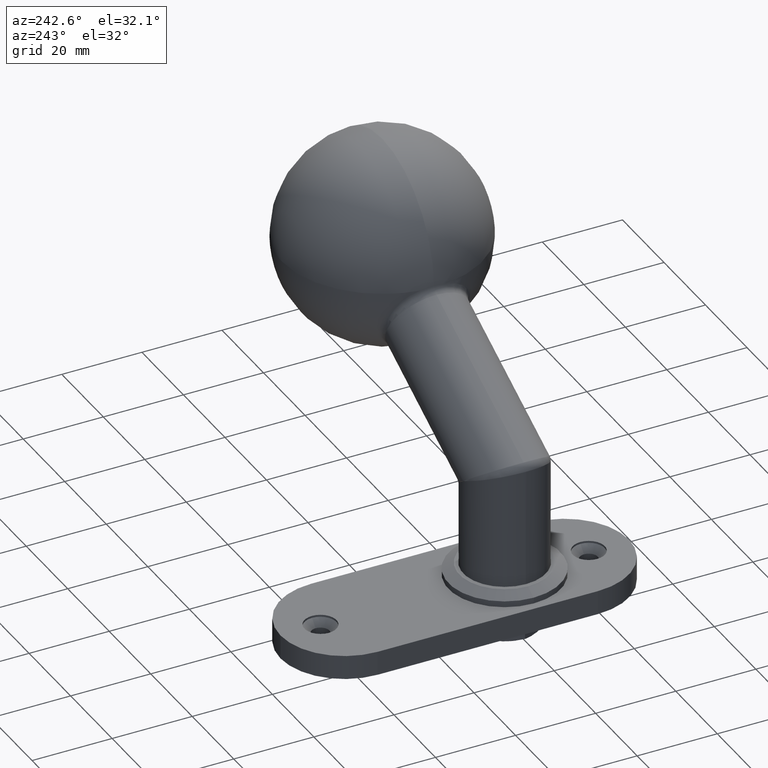
[diagram: clean part render]
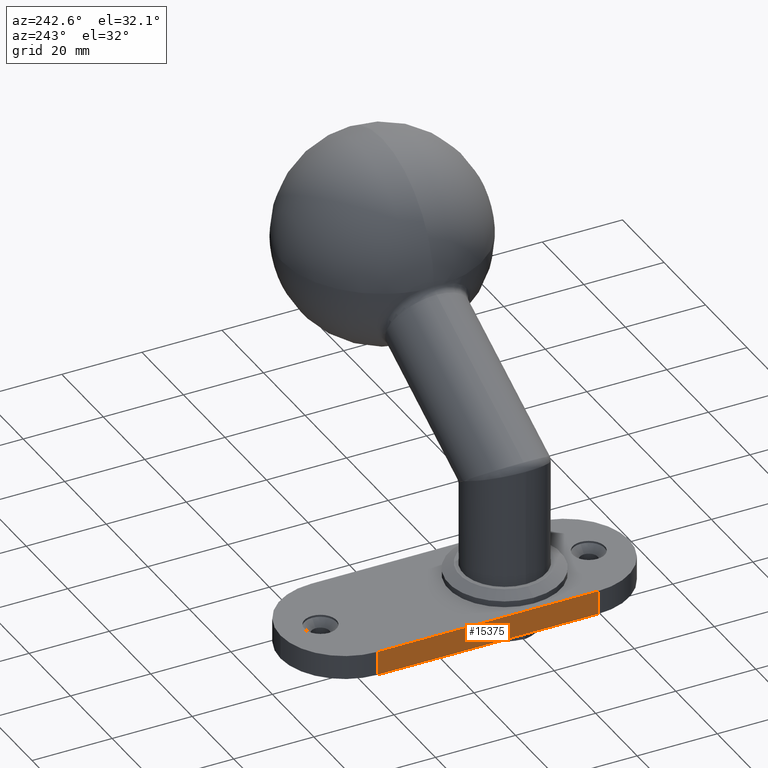
[diagram: same view with one face highlighted and labeled with its STEP entity id]
A machine part, auxiliary view. The second image highlights one B-rep face of the part: STEP entity #15375.
In plain terms, the highlighted planar face has unit normal (1, 0, 0).
Its self-contained STEP definition (entity closure, byte-faithful):
#335 = FACE_OUTER_BOUND ( 'NONE', #11036, .T. ) ;
#523 = DIRECTION ( 'NONE',  ( 0.000000000000000000, 0.000000000000000000, 1.000000000000000000 ) ) ;
#1092 = EDGE_CURVE ( 'NONE', #8962, #11419, #15487, .T. ) ;
#1316 = DIRECTION ( 'NONE',  ( -1.112002228190260952E-16, 1.000000000000000000, 0.000000000000000000 ) ) ;
#1861 = CARTESIAN_POINT ( 'NONE',  ( -16.00000000000001066, 78.00000000000000000, 6.000000000000000000 ) ) ;
#1916 = CARTESIAN_POINT ( 'NONE',  ( -16.00000000000000711, 62.00000000000000000, 0.000000000000000000 ) ) ;
#2092 = VECTOR ( 'NONE', #11151, 1000.000000000000000 ) ;
#2892 = ORIENTED_EDGE ( 'NONE', *, *, #16276, .F. ) ;
#3651 = DIRECTION ( 'NONE',  ( 1.112002228190260952E-16, -1.000000000000000000, 0.000000000000000000 ) ) ;
#3960 = EDGE_CURVE ( 'NONE', #5055, #8962, #12515, .T. ) ;
#4554 = CARTESIAN_POINT ( 'NONE',  ( -16.00000000000000711, 62.00000000000000000, 6.000000000000000000 ) ) ;
#5055 = VERTEX_POINT ( 'NONE', #4554 ) ;
#5184 = PLANE ( 'NONE',  #9800 ) ;
#5463 = ORIENTED_EDGE ( 'NONE', *, *, #1092, .T. ) ;
#5896 = CARTESIAN_POINT ( 'NONE',  ( -16.00000000000000711, 62.00000000000000000, 6.000000000000000000 ) ) ;
#6484 = VECTOR ( 'NONE', #3651, 1000.000000000000000 ) ;
#6906 = VECTOR ( 'NONE', #523, 1000.000000000000000 ) ;
#8074 = EDGE_CURVE ( 'NONE', #11419, #14057, #13897, .T. ) ;
#8962 = VERTEX_POINT ( 'NONE', #1916 ) ;
#9683 = VECTOR ( 'NONE', #10861, 1000.000000000000000 ) ;
#9800 = AXIS2_PLACEMENT_3D ( 'NONE', #14270, #10257, #1316 ) ;
#10257 = DIRECTION ( 'NONE',  ( 1.000000000000000000, 1.112002228190260952E-16, -0.000000000000000000 ) ) ;
#10696 = LINE ( 'NONE', #1861, #9683 ) ;
#10731 = ORIENTED_EDGE ( 'NONE', *, *, #3960, .T. ) ;
#10861 = DIRECTION ( 'NONE',  ( 1.112002228190260952E-16, -1.000000000000000000, 0.000000000000000000 ) ) ;
#11036 = EDGE_LOOP ( 'NONE', ( #2892, #10731, #5463, #12210 ) ) ;
#11151 = DIRECTION ( 'NONE',  ( 0.000000000000000000, 0.000000000000000000, -1.000000000000000000 ) ) ;
#11419 = VERTEX_POINT ( 'NONE', #13242 ) ;
#12111 = CARTESIAN_POINT ( 'NONE',  ( -16.00000000000000355, 7.000000000000006217, 6.000000000000000000 ) ) ;
#12210 = ORIENTED_EDGE ( 'NONE', *, *, #8074, .T. ) ;
#12515 = LINE ( 'NONE', #5896, #2092 ) ;
#13242 = CARTESIAN_POINT ( 'NONE',  ( -16.00000000000000355, 7.000000000000006217, 0.000000000000000000 ) ) ;
#13897 = LINE ( 'NONE', #12111, #6906 ) ;
#14057 = VERTEX_POINT ( 'NONE', #16292 ) ;
#14270 = CARTESIAN_POINT ( 'NONE',  ( -16.00000000000001066, 78.00000000000000000, 6.000000000000000000 ) ) ;
#14325 = CARTESIAN_POINT ( 'NONE',  ( -16.00000000000001066, 78.00000000000000000, 0.000000000000000000 ) ) ;
#15375 = ADVANCED_FACE ( 'NONE', ( #335 ), #5184, .F. ) ;
#15487 = LINE ( 'NONE', #14325, #6484 ) ;
#16276 = EDGE_CURVE ( 'NONE', #5055, #14057, #10696, .T. ) ;
#16292 = CARTESIAN_POINT ( 'NONE',  ( -16.00000000000000355, 7.000000000000006217, 6.000000000000000000 ) ) ;